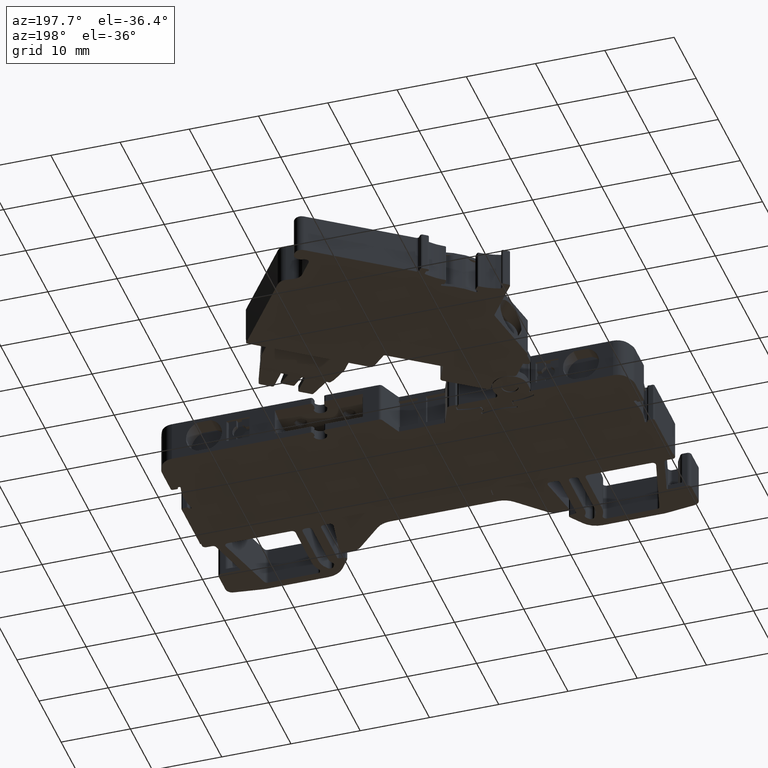
[diagram: clean part render]
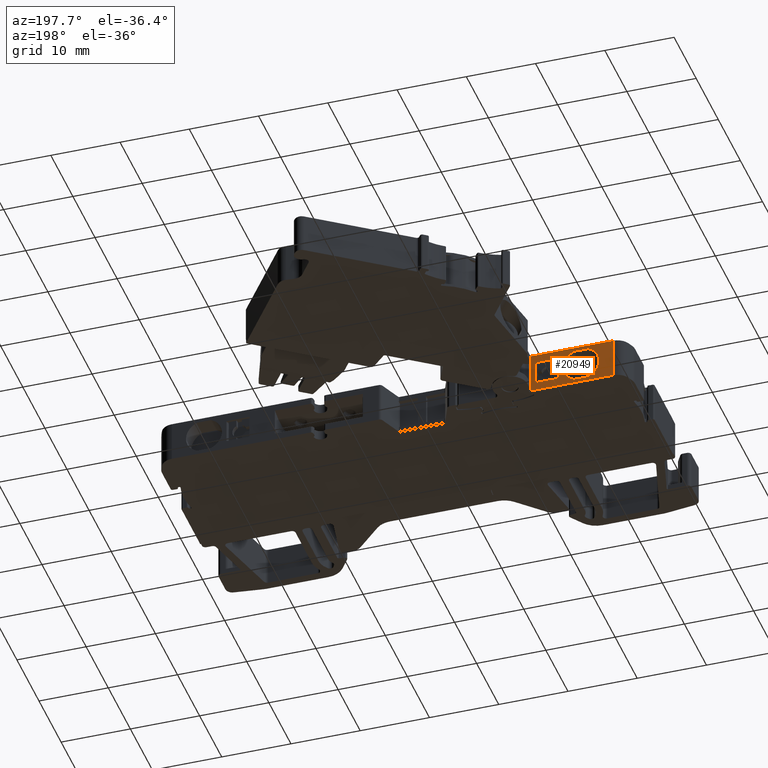
[diagram: same view with one face highlighted and labeled with its STEP entity id]
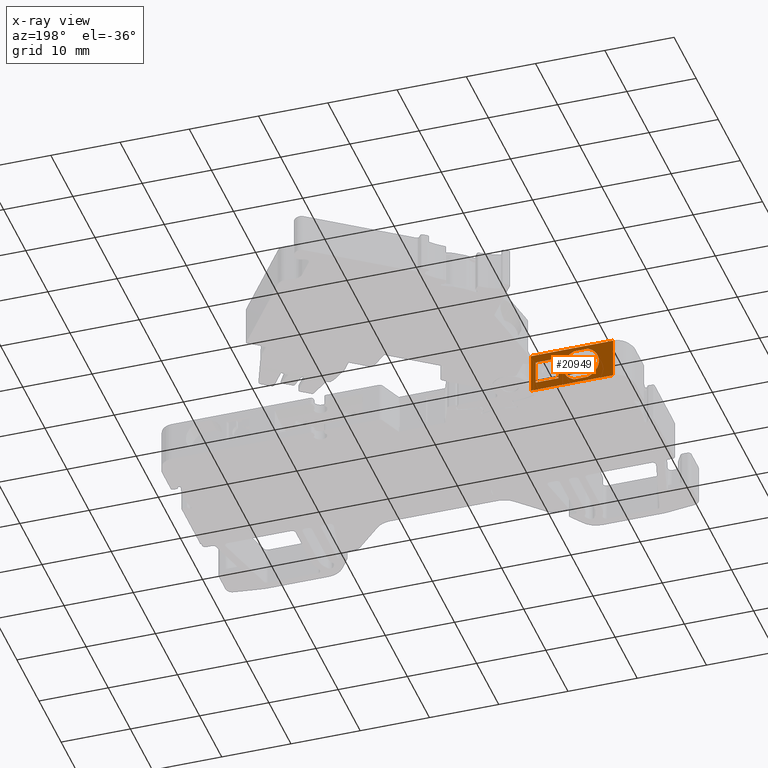
[diagram: x-ray of the same camera — body ghosted, the highlighted face saturated]
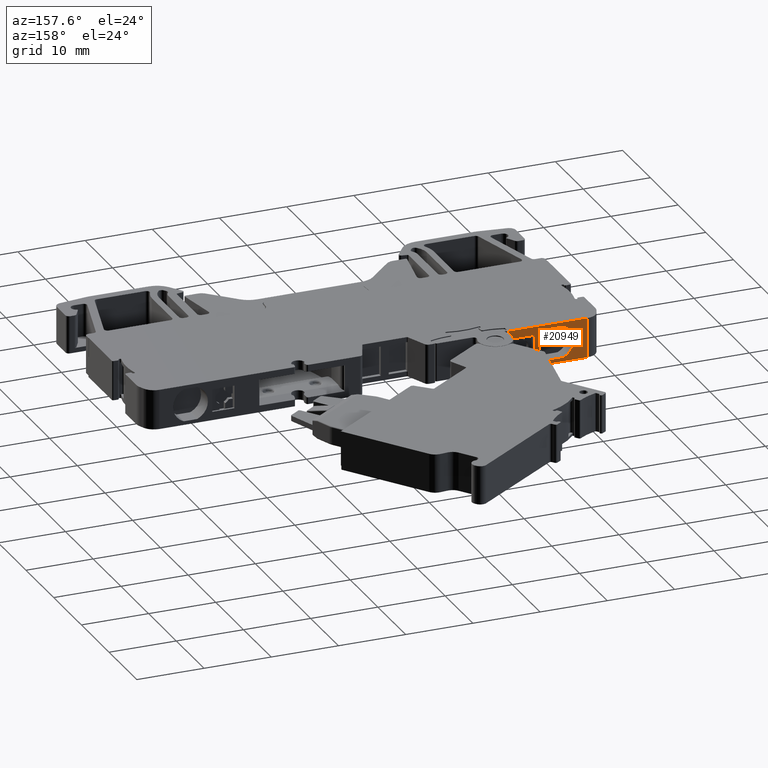
[diagram: same view with one face highlighted and labeled with its STEP entity id]
A machine part, auxiliary view. The second image highlights one B-rep face of the part: STEP entity #20949.
The next image is the same camera in x-ray: the body ghosted, the highlighted face saturated — about 0% of this face is hidden behind the body in this view.
A second angle (auxiliary view) of the same face is appended — the face is thin or edge-on in the first view.
In plain terms, the highlighted planar face has unit normal (-0, 1, 0).
Its self-contained STEP definition (entity closure, byte-faithful):
#2103 = CARTESIAN_POINT ( 'NONE',  ( 1532.434281244295100, 745.9846928684037300, 5.850000000000021800 ) ) ;
#2137 = CARTESIAN_POINT ( 'NONE',  ( 1532.434281244295100, 745.9846928684037300, -0.04999999999997020700 ) ) ;
#2346 = CARTESIAN_POINT ( 'NONE',  ( 1538.176887095611800, 745.9846947404289500, 5.252381067804127400 ) ) ;
#2367 = CARTESIAN_POINT ( 'NONE',  ( 1538.176887213926200, 745.9846945194856300, 0.5476189878923676300 ) ) ;
#2369 = CARTESIAN_POINT ( 'NONE',  ( 1535.962118009995000, 745.9846939699723400, 5.252381067803607800 ) ) ;
#2405 = CARTESIAN_POINT ( 'NONE',  ( 1537.963928485799900, 745.9846946887627200, 5.299999999999987400 ) ) ;
#3577 = AXIS2_PLACEMENT_3D ( 'NONE', #17971, #17973, #17984 ) ;
#3589 = CIRCLE ( 'NONE', #3577, 0.4999999999999995600 ) ;
#3703 = VECTOR ( 'NONE', #18362, 1000.000000000000000 ) ;
#3712 = VECTOR ( 'NONE', #25175, 1000.000000000000000 ) ;
#3717 = AXIS2_PLACEMENT_3D ( 'NONE', #18347, #18353, #18401 ) ;
#3741 = CIRCLE ( 'NONE', #3717, 2.599999464194734600 ) ;
#3754 = VECTOR ( 'NONE', #25176, 1000.000000000000100 ) ;
#3801 = AXIS2_PLACEMENT_3D ( 'NONE', #24002, #23981, #24009 ) ;
#3803 = CIRCLE ( 'NONE', #3801, 2.599999464194734600 ) ;
#3826 = VECTOR ( 'NONE', #24253, 1000.000000000000100 ) ;
#3836 = VECTOR ( 'NONE', #24233, 1000.000000000000000 ) ;
#3837 = VECTOR ( 'NONE', #24215, 1000.000000000000100 ) ;
#3857 = VECTOR ( 'NONE', #24144, 1000.000000000000100 ) ;
#3901 = VECTOR ( 'NONE', #24285, 1000.000000000000100 ) ;
#3976 = VECTOR ( 'NONE', #24587, 1000.000000000000000 ) ;
#4141 = VECTOR ( 'NONE', #24941, 1000.000000000000100 ) ;
#4340 = CIRCLE ( 'NONE', #4341, 0.5000000000000000000 ) ;
#4341 = AXIS2_PLACEMENT_3D ( 'NONE', #17704, #17695, #17684 ) ;
#4395 = AXIS2_PLACEMENT_3D ( 'NONE', #17778, #17764, #17793 ) ;
#4399 = AXIS2_PLACEMENT_3D ( 'NONE', #17830, #17812, #17799 ) ;
#4415 = CIRCLE ( 'NONE', #4395, 0.4999999999999995600 ) ;
#4421 = CIRCLE ( 'NONE', #4399, 0.5000000000000000000 ) ;
#4869 = ORIENTED_EDGE ( 'NONE', *, *, #7064, .T. ) ;
#4873 = ORIENTED_EDGE ( 'NONE', *, *, #7062, .T. ) ;
#4877 = ORIENTED_EDGE ( 'NONE', *, *, #6945, .T. ) ;
#4878 = ORIENTED_EDGE ( 'NONE', *, *, #7187, .T. ) ;
#4881 = ORIENTED_EDGE ( 'NONE', *, *, #6882, .T. ) ;
#4892 = ORIENTED_EDGE ( 'NONE', *, *, #7166, .T. ) ;
#4898 = ORIENTED_EDGE ( 'NONE', *, *, #7068, .T. ) ;
#4899 = ORIENTED_EDGE ( 'NONE', *, *, #7132, .T. ) ;
#4919 = ORIENTED_EDGE ( 'NONE', *, *, #7090, .T. ) ;
#4925 = ORIENTED_EDGE ( 'NONE', *, *, #7067, .T. ) ;
#4926 = ORIENTED_EDGE ( 'NONE', *, *, #7273, .T. ) ;
#4928 = ORIENTED_EDGE ( 'NONE', *, *, #7243, .F. ) ;
#4944 = ORIENTED_EDGE ( 'NONE', *, *, #7154, .T. ) ;
#4948 = ORIENTED_EDGE ( 'NONE', *, *, #6878, .T. ) ;
#4965 = ORIENTED_EDGE ( 'NONE', *, *, #7167, .T. ) ;
#4971 = ORIENTED_EDGE ( 'NONE', *, *, #6840, .T. ) ;
#5124 = VERTEX_POINT ( 'NONE', #18598 ) ;
#5198 = VERTEX_POINT ( 'NONE', #18753 ) ;
#5222 = VERTEX_POINT ( 'NONE', #18747 ) ;
#5231 = VERTEX_POINT ( 'NONE', #18746 ) ;
#5233 = VERTEX_POINT ( 'NONE', #18748 ) ;
#5457 = VERTEX_POINT ( 'NONE', #19126 ) ;
#5691 = VERTEX_POINT ( 'NONE', #19570 ) ;
#5714 = VERTEX_POINT ( 'NONE', #19587 ) ;
#5717 = VERTEX_POINT ( 'NONE', #19635 ) ;
#5723 = VERTEX_POINT ( 'NONE', #19644 ) ;
#6840 = EDGE_CURVE ( 'NONE', #5717, #18449, #4340, .T. ) ;
#6878 = EDGE_CURVE ( 'NONE', #18444, #18458, #4415, .T. ) ;
#6882 = EDGE_CURVE ( 'NONE', #5723, #5714, #4421, .T. ) ;
#6945 = EDGE_CURVE ( 'NONE', #5691, #18425, #3589, .T. ) ;
#7062 = EDGE_CURVE ( 'NONE', #5222, #5124, #18359, .T. ) ;
#7064 = EDGE_CURVE ( 'NONE', #18425, #5723, #3741, .T. ) ;
#7067 = EDGE_CURVE ( 'NONE', #5233, #5198, #25197, .T. ) ;
#7068 = EDGE_CURVE ( 'NONE', #5714, #5717, #25199, .T. ) ;
#7090 = EDGE_CURVE ( 'NONE', #18449, #18444, #3803, .T. ) ;
#7132 = EDGE_CURVE ( 'NONE', #5198, #5231, #24148, .T. ) ;
#7154 = EDGE_CURVE ( 'NONE', #5231, #5457, #24170, .T. ) ;
#7166 = EDGE_CURVE ( 'NONE', #15973, #5222, #24214, .T. ) ;
#7167 = EDGE_CURVE ( 'NONE', #5457, #5233, #24220, .T. ) ;
#7187 = EDGE_CURVE ( 'NONE', #18458, #5691, #24317, .T. ) ;
#7243 = EDGE_CURVE ( 'NONE', #15973, #15984, #24567, .T. ) ;
#7273 = EDGE_CURVE ( 'NONE', #5124, #15984, #25002, .T. ) ;
#10318 = AXIS2_PLACEMENT_3D ( 'NONE', #14348, #14310, #14341 ) ;
#11318 = EDGE_LOOP ( 'NONE', ( #4878, #4877, #4869, #4881, #4898, #4971, #4919, #4948 ) ) ;
#11398 = EDGE_LOOP ( 'NONE', ( #4928, #4892, #4873, #4926 ) ) ;
#11420 = EDGE_LOOP ( 'NONE', ( #4965, #4925, #4899, #4944 ) ) ;
#14302 = PLANE ( 'NONE',  #10318 ) ;
#14308 = FACE_BOUND ( 'NONE', #11318, .T. ) ;
#14310 = DIRECTION ( 'NONE',  ( -2.969274737050291400E-007, 0.9999999999999559200, 0.0000000000000000000 ) ) ;
#14314 = FACE_BOUND ( 'NONE', #11420, .T. ) ;
#14337 = FACE_OUTER_BOUND ( 'NONE', #11398, .T. ) ;
#14341 = DIRECTION ( 'NONE',  ( -0.9999999999999559200, -2.969274737050291400E-007, 0.0000000000000000000 ) ) ;
#14348 = CARTESIAN_POINT ( 'NONE',  ( 1544.081860119230400, 745.9846963268901200, -71.71926418511326100 ) ) ;
#15973 = VERTEX_POINT ( 'NONE', #2103 ) ;
#15984 = VERTEX_POINT ( 'NONE', #2137 ) ;
#17684 = DIRECTION ( 'NONE',  ( 0.0000000000000000000, 0.0000000000000000000, -1.000000000000000000 ) ) ;
#17695 = DIRECTION ( 'NONE',  ( 0.0000000000000000000, -1.000000000000000000, 0.0000000000000000000 ) ) ;
#17704 = CARTESIAN_POINT ( 'NONE',  ( 1537.963928485799900, 745.9846945103090500, 1.000000000000000000 ) ) ;
#17764 = DIRECTION ( 'NONE',  ( 0.0000000000000000000, -1.000000000000000000, 0.0000000000000000000 ) ) ;
#17778 = CARTESIAN_POINT ( 'NONE',  ( 1537.963928485799900, 745.9846948672174000, 4.799999999999999800 ) ) ;
#17793 = DIRECTION ( 'NONE',  ( 0.0000000000000000000, 0.0000000000000000000, -1.000000000000000000 ) ) ;
#17799 = DIRECTION ( 'NONE',  ( 0.0000000000000000000, 0.0000000000000000000, -1.000000000000000000 ) ) ;
#17812 = DIRECTION ( 'NONE',  ( 0.0000000000000000000, -1.000000000000000000, 0.0000000000000000000 ) ) ;
#17830 = CARTESIAN_POINT ( 'NONE',  ( 1536.175076619804900, 745.9846937470787200, 1.000000000000000000 ) ) ;
#17971 = CARTESIAN_POINT ( 'NONE',  ( 1536.175076619804900, 745.9846939791490300, 4.799999999999999800 ) ) ;
#17973 = DIRECTION ( 'NONE',  ( 0.0000000000000000000, -1.000000000000000000, 0.0000000000000000000 ) ) ;
#17984 = DIRECTION ( 'NONE',  ( 0.0000000000000000000, 0.0000000000000000000, -1.000000000000000000 ) ) ;
#18347 = CARTESIAN_POINT ( 'NONE',  ( 1537.069502552805500, 745.9846939550602700, 2.899999999999999900 ) ) ;
#18353 = DIRECTION ( 'NONE',  ( 0.0000000000000000000, -1.000000000000000000, 0.0000000000000000000 ) ) ;
#18359 = LINE ( 'NONE', #18378, #3703 ) ;
#18362 = DIRECTION ( 'NONE',  ( -0.0000000000000000000, -0.0000000000000000000, -1.000000000000000000 ) ) ;
#18378 = CARTESIAN_POINT ( 'NONE',  ( 1544.274322259849900, 745.9846963840374200, -71.71926418511326100 ) ) ;
#18401 = DIRECTION ( 'NONE',  ( 0.0000000000000000000, 0.0000000000000000000, -1.000000000000000000 ) ) ;
#18425 = VERTEX_POINT ( 'NONE', #2369 ) ;
#18444 = VERTEX_POINT ( 'NONE', #2346 ) ;
#18449 = VERTEX_POINT ( 'NONE', #2367 ) ;
#18458 = VERTEX_POINT ( 'NONE', #2405 ) ;
#18598 = CARTESIAN_POINT ( 'NONE',  ( 1544.274322970775100, 745.9846963840376500, -0.04999999999997295500 ) ) ;
#18746 = CARTESIAN_POINT ( 'NONE',  ( 1543.619177657307500, 745.9846960364074000, 1.199999999998238500 ) ) ;
#18747 = CARTESIAN_POINT ( 'NONE',  ( 1544.274322970775100, 745.9846963840376500, 5.850000000000032500 ) ) ;
#18748 = CARTESIAN_POINT ( 'NONE',  ( 1540.317978808960100, 745.9846958859943700, 4.600000000001073500 ) ) ;
#18753 = CARTESIAN_POINT ( 'NONE',  ( 1540.317978808960100, 745.9846955951841200, 1.199999999996467000 ) ) ;
#19126 = CARTESIAN_POINT ( 'NONE',  ( 1543.619177659280000, 745.9846963008027400, 4.600000000003194400 ) ) ;
#19570 = CARTESIAN_POINT ( 'NONE',  ( 1536.175075859072400, 745.9846939791488000, 5.299999999999987400 ) ) ;
#19587 = CARTESIAN_POINT ( 'NONE',  ( 1536.175076619804900, 745.9846938631138800, 0.4999999999996358500 ) ) ;
#19635 = CARTESIAN_POINT ( 'NONE',  ( 1537.963928964904900, 745.9846945103090500, 0.4999999999992936800 ) ) ;
#19644 = CARTESIAN_POINT ( 'NONE',  ( 1535.962118009994400, 745.9846938263098100, 0.5476189321967081000 ) ) ;
#20949 = ADVANCED_FACE ( 'NONE', ( #14314, #14308, #14337 ), #14302, .T. ) ;
#23981 = DIRECTION ( 'NONE',  ( 0.0000000000000000000, -1.000000000000000000, 0.0000000000000000000 ) ) ;
#24002 = CARTESIAN_POINT ( 'NONE',  ( 1537.069502552805500, 745.9846945343977000, 2.899999999999999900 ) ) ;
#24009 = DIRECTION ( 'NONE',  ( 0.0000000000000000000, 0.0000000000000000000, -1.000000000000000000 ) ) ;
#24127 = CARTESIAN_POINT ( 'NONE',  ( 1544.081860119230400, 745.9846963268901200, 1.199999999992942700 ) ) ;
#24144 = DIRECTION ( 'NONE',  ( 0.9999999999999559200, 2.969274737050291400E-007, -0.0000000000000000000 ) ) ;
#24148 = LINE ( 'NONE', #24127, #3857 ) ;
#24170 = LINE ( 'NONE', #24210, #3836 ) ;
#24210 = CARTESIAN_POINT ( 'NONE',  ( 1543.619177657307800, 745.9846961895070800, -71.71926418511326100 ) ) ;
#24214 = LINE ( 'NONE', #24237, #3837 ) ;
#24215 = DIRECTION ( 'NONE',  ( 0.9999999999999559200, 2.969274737050291400E-007, -0.0000000000000000000 ) ) ;
#24220 = LINE ( 'NONE', #24230, #3826 ) ;
#24230 = CARTESIAN_POINT ( 'NONE',  ( 1544.081860119230400, 745.9846963268901200, 4.600000000004281600 ) ) ;
#24233 = DIRECTION ( 'NONE',  ( 0.0000000000000000000, 0.0000000000000000000, 1.000000000000000000 ) ) ;
#24237 = CARTESIAN_POINT ( 'NONE',  ( 1544.081860119230400, 745.9846963268901200, 5.850000000000049400 ) ) ;
#24253 = DIRECTION ( 'NONE',  ( -0.9999999999999559200, -2.969274737050291400E-007, 0.0000000000000000000 ) ) ;
#24285 = DIRECTION ( 'NONE',  ( -0.9999999999999559200, -2.969274737050291400E-007, 0.0000000000000000000 ) ) ;
#24317 = LINE ( 'NONE', #24332, #3901 ) ;
#24332 = CARTESIAN_POINT ( 'NONE',  ( 1544.081860119230400, 745.9846963268901200, 5.300000000000013100 ) ) ;
#24567 = LINE ( 'NONE', #24572, #3976 ) ;
#24572 = CARTESIAN_POINT ( 'NONE',  ( 1532.434282675805000, 745.9846928684037300, -71.71926418511326100 ) ) ;
#24587 = DIRECTION ( 'NONE',  ( -0.0000000000000000000, -0.0000000000000000000, -1.000000000000000000 ) ) ;
#24941 = DIRECTION ( 'NONE',  ( -0.9999999999999559200, -2.969274737050291400E-007, 0.0000000000000000000 ) ) ;
#25002 = LINE ( 'NONE', #25004, #4141 ) ;
#25004 = CARTESIAN_POINT ( 'NONE',  ( 1544.081860119230400, 745.9846963268901200, -0.04999999999993898200 ) ) ;
#25175 = DIRECTION ( 'NONE',  ( -0.0000000000000000000, -0.0000000000000000000, -1.000000000000000000 ) ) ;
#25176 = DIRECTION ( 'NONE',  ( 0.9999999999999559200, 2.969274737050291400E-007, -0.0000000000000000000 ) ) ;
#25196 = CARTESIAN_POINT ( 'NONE',  ( 1544.081860119230400, 745.9846963268901200, 0.4999999999985432800 ) ) ;
#25197 = LINE ( 'NONE', #25200, #3712 ) ;
#25199 = LINE ( 'NONE', #25196, #3754 ) ;
#25200 = CARTESIAN_POINT ( 'NONE',  ( 1540.317978808960300, 745.9846952092902900, -71.71926418511326100 ) ) ;